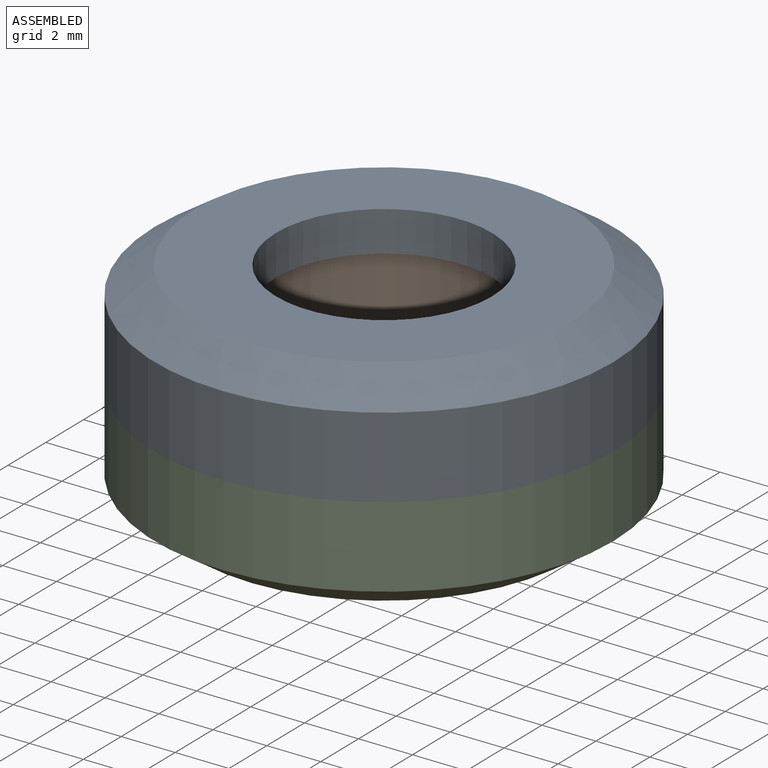
[diagram: assembled view]
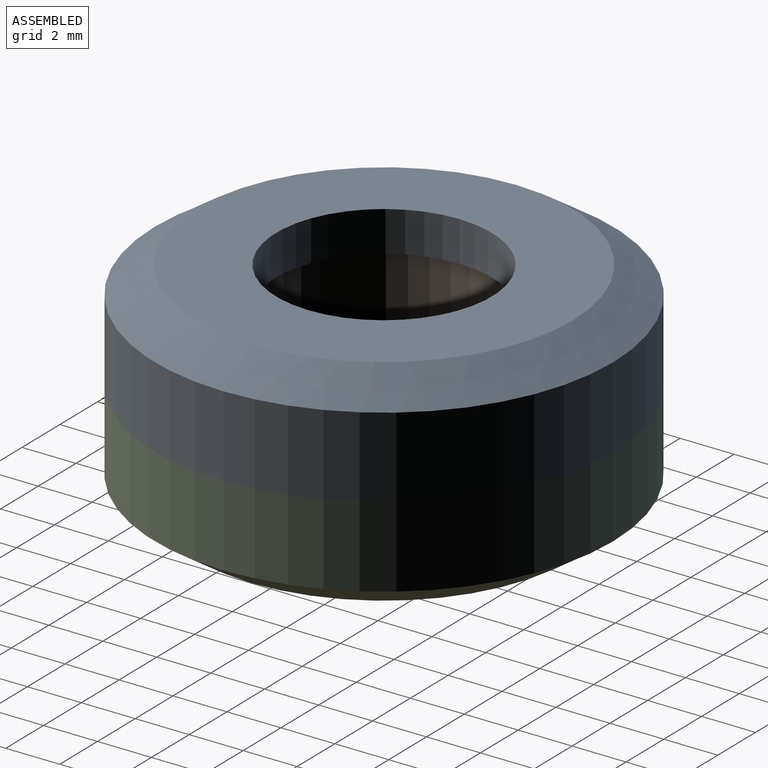
[diagram: assembled view, second angle]
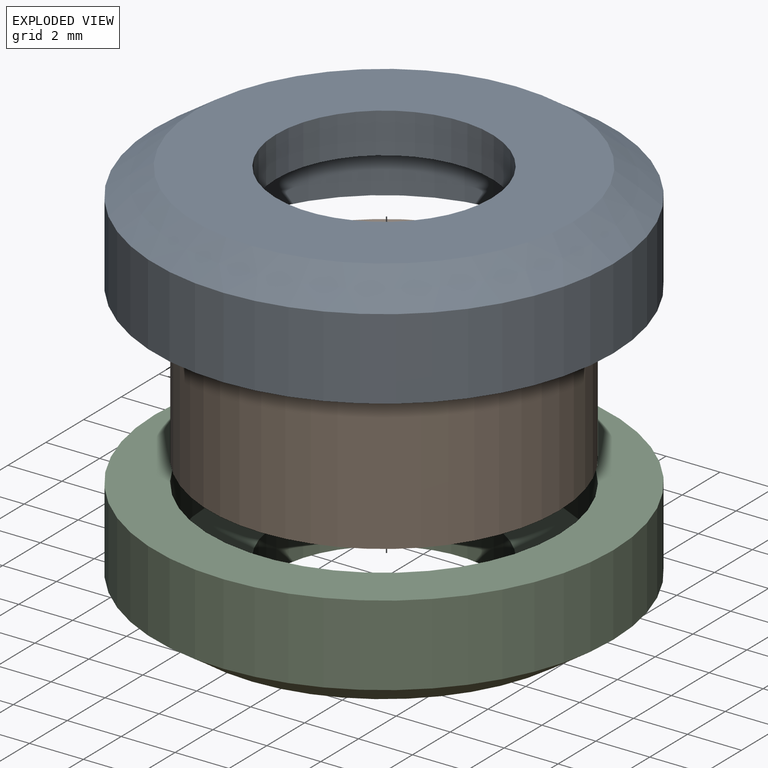
[diagram: exploded view]
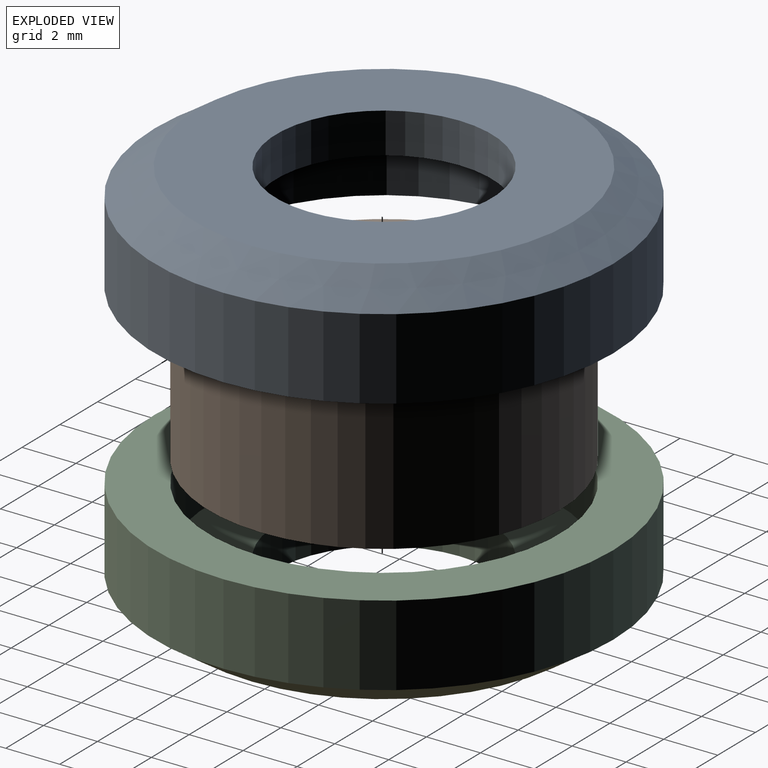
[diagram: exploded view, second angle]
ASSEMBLY  parts=3 mates=4
PART A: 7 faces, bbox 17x17x4 mm
  f0: cylinder r=6.5mm len=13mm, axis (0,0,-1), area 102.1mm2, adj f2,f3
  f1: cylinder r=8.5mm len=17mm, axis (0,0,-1), area 160.2mm2, adj f2,f4
  f2: plane 17x17mm, normal (0,0,1), area 94.2mm2, adj f0,f1
  f3: plane 13x13mm, normal (0,0,1), area 82.5mm2, adj f0,f6
  f4: cone r=8.5mm half-angle=56.3deg, axis (0,0,1), area 87.8mm2, adj f1,f5
  f5: plane 14x14mm, normal (0,0,-1), area 103.7mm2, adj f4,f6
  f6: cylinder r=4mm len=8mm, axis (0,0,1), area 37.7mm2, adj f3,f5
PART B: 4 faces, bbox 13x13x5 mm
  f0: cylinder r=4.55mm len=9.1mm, axis (0,0,-1), area 142.9mm2, adj f2,f3
  f1: cylinder r=6.5mm len=13mm, axis (0,0,-1), area 204.2mm2, adj f2,f3
  f2: plane 13x13mm, normal (0,0,1), area 67.7mm2, adj f0,f1
  f3: plane 13x13mm, normal (0,0,-1), area 67.7mm2, adj f0,f1
PART C: same geometry as A
PLACE A rot(axis=(1,0,0),180deg) t=(3.45,1.84,3.02)mm
PLACE B t=(3.45,1.84,-1.98)mm
PLACE C t=(3.45,1.84,-1.98)mm
MATE cylindrical B.f0 <-> A.f0  axis (0,0,-1) through (3.45,1.84,0.52)mm
MATE planar A.f0 <-> C.f0  axis (0,0,-1) through (3.45,1.84,0.52)mm
MATE cylindrical C.f0 <-> B.f0  axis (0,0,-1) through (3.45,1.84,0.52)mm
MATE planar B.f0 <-> C.f0  axis (0,0,-1) through (3.45,1.84,-1.98)mm
